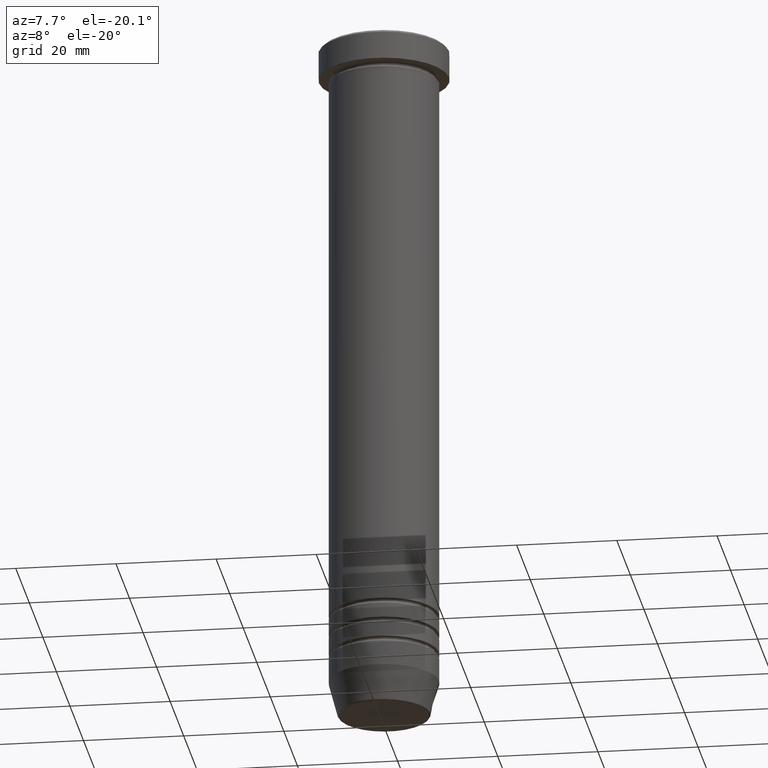
[diagram: clean part render]
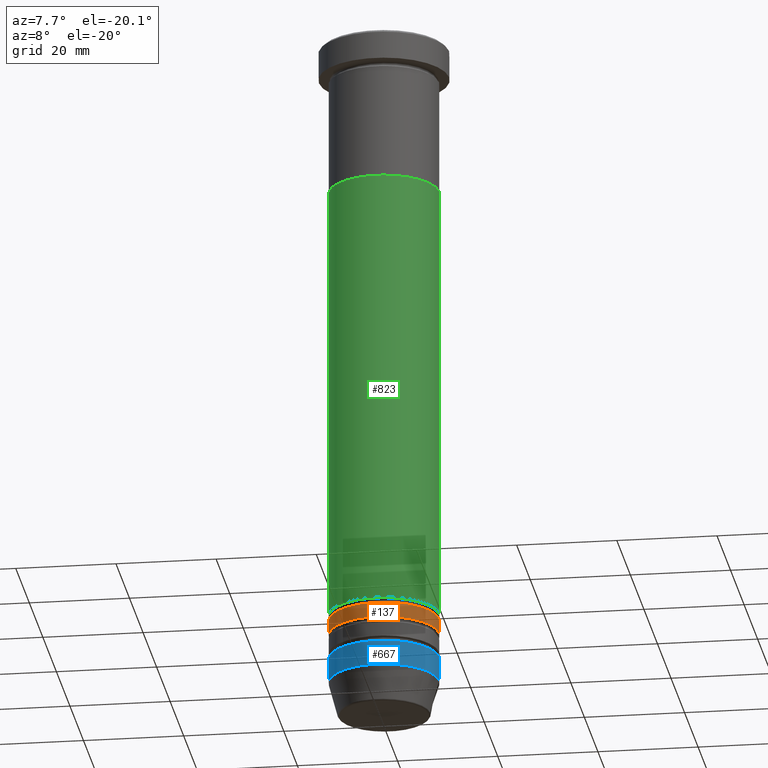
[diagram: same view with three faces highlighted in distinct colors, each labeled with its STEP entity id]
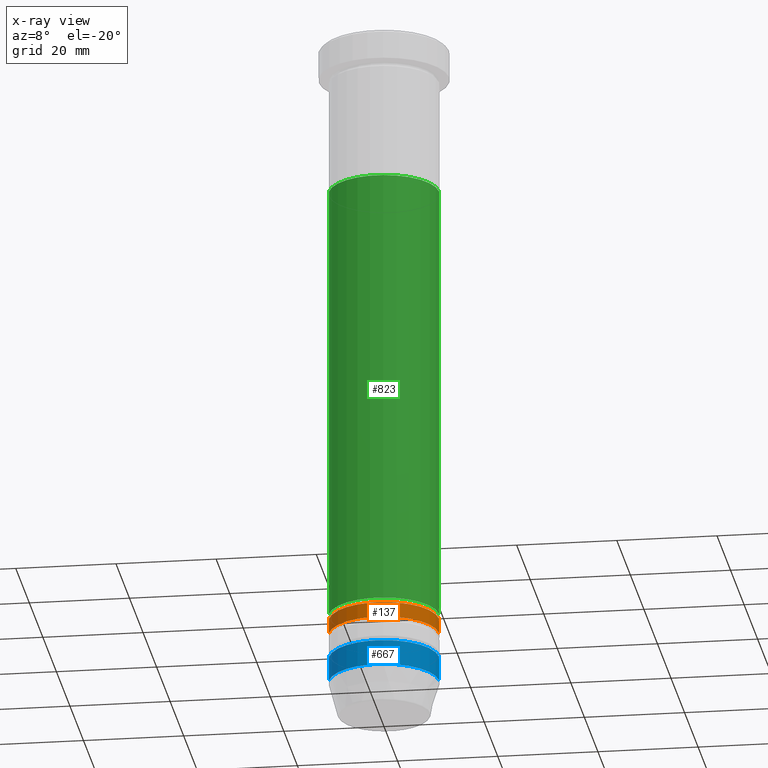
[diagram: x-ray of the same camera — body ghosted, the three highlighted faces saturated]
A machine part, auxiliary view with three faces highlighted in distinct colors.
The next image is the same camera in x-ray (body ghosted, the three faces saturated) — at least one of them is partly hidden behind the body in this view.
Their STEP definitions:

[orange] entity #137 — the highlighted cylindrical surface (partial cylindrical patch) has radius 11 mm, axis along (-0, -0, 1).
#3 = CARTESIAN_POINT ( 'NONE',  ( -10.99999999999999822, 1.347111479062088207E-15, -123.0000000000000000 ) ) ;
#25 = AXIS2_PLACEMENT_3D ( 'NONE', #379, #712, #158 ) ;
#36 = EDGE_CURVE ( 'NONE', #610, #369, #223, .T. ) ;
#61 = LINE ( 'NONE', #775, #469 ) ;
#137 = ADVANCED_FACE ( 'NONE', ( #724 ), #990, .T. ) ;
#158 = DIRECTION ( 'NONE',  ( 1.000000000000000000, 0.000000000000000000, 0.000000000000000000 ) ) ;
#174 = VERTEX_POINT ( 'NONE', #570 ) ;
#223 = CIRCLE ( 'NONE', #25, 11.00000000000000000 ) ;
#244 = DIRECTION ( 'NONE',  ( 1.000000000000000000, 0.000000000000000000, 0.000000000000000000 ) ) ;
#282 = ORIENTED_EDGE ( 'NONE', *, *, #614, .T. ) ;
#351 = LINE ( 'NONE', #687, #764 ) ;
#362 = ORIENTED_EDGE ( 'NONE', *, *, #845, .T. ) ;
#369 = VERTEX_POINT ( 'NONE', #766 ) ;
#379 = CARTESIAN_POINT ( 'NONE',  ( 0.000000000000000000, 0.000000000000000000, -120.0000000000000000 ) ) ;
#381 = DIRECTION ( 'NONE',  ( -0.000000000000000000, -0.000000000000000000, 1.000000000000000000 ) ) ;
#403 = DIRECTION ( 'NONE',  ( -0.000000000000000000, -0.000000000000000000, 1.000000000000000000 ) ) ;
#414 = CARTESIAN_POINT ( 'NONE',  ( -11.00000000000000000, 1.347111479062088405E-15, -120.0000000000000000 ) ) ;
#469 = VECTOR ( 'NONE', #381, 1000.000000000000000 ) ;
#550 = AXIS2_PLACEMENT_3D ( 'NONE', #811, #403, #1059 ) ;
#570 = CARTESIAN_POINT ( 'NONE',  ( 10.99999999999999822, 0.000000000000000000, -123.0000000000000000 ) ) ;
#610 = VERTEX_POINT ( 'NONE', #414 ) ;
#614 = EDGE_CURVE ( 'NONE', #1034, #174, #916, .T. ) ;
#660 = CARTESIAN_POINT ( 'NONE',  ( 0.000000000000000000, 0.000000000000000000, 0.000000000000000000 ) ) ;
#687 = CARTESIAN_POINT ( 'NONE',  ( 11.00000000000000000, 0.000000000000000000, 0.000000000000000000 ) ) ;
#712 = DIRECTION ( 'NONE',  ( -0.000000000000000000, -0.000000000000000000, 1.000000000000000000 ) ) ;
#724 = FACE_OUTER_BOUND ( 'NONE', #1057, .T. ) ;
#742 = DIRECTION ( 'NONE',  ( -0.000000000000000000, -0.000000000000000000, 1.000000000000000000 ) ) ;
#764 = VECTOR ( 'NONE', #936, 1000.000000000000000 ) ;
#766 = CARTESIAN_POINT ( 'NONE',  ( 11.00000000000000000, 0.000000000000000000, -120.0000000000000000 ) ) ;
#775 = CARTESIAN_POINT ( 'NONE',  ( -11.00000000000000000, 1.347111479062088405E-15, 0.000000000000000000 ) ) ;
#811 = CARTESIAN_POINT ( 'NONE',  ( 0.000000000000000000, 0.000000000000000000, -123.0000000000000000 ) ) ;
#815 = ORIENTED_EDGE ( 'NONE', *, *, #36, .F. ) ;
#845 = EDGE_CURVE ( 'NONE', #174, #369, #351, .T. ) ;
#900 = ORIENTED_EDGE ( 'NONE', *, *, #968, .F. ) ;
#916 = CIRCLE ( 'NONE', #550, 10.99999999999999822 ) ;
#936 = DIRECTION ( 'NONE',  ( -0.000000000000000000, -0.000000000000000000, 1.000000000000000000 ) ) ;
#968 = EDGE_CURVE ( 'NONE', #1034, #610, #61, .T. ) ;
#990 = CYLINDRICAL_SURFACE ( 'NONE', #1036, 11.00000000000000000 ) ;
#1034 = VERTEX_POINT ( 'NONE', #3 ) ;
#1036 = AXIS2_PLACEMENT_3D ( 'NONE', #660, #742, #244 ) ;
#1057 = EDGE_LOOP ( 'NONE', ( #900, #282, #362, #815 ) ) ;
#1059 = DIRECTION ( 'NONE',  ( 1.000000000000000000, 0.000000000000000000, 0.000000000000000000 ) ) ;

[blue] entity #667 — the highlighted cylindrical surface (partial cylindrical patch) has radius 11 mm, axis along (-0, -0, 1).
#5 = FACE_OUTER_BOUND ( 'NONE', #313, .T. ) ;
#68 = CARTESIAN_POINT ( 'NONE',  ( 11.00000000000000000, 0.000000000000000000, -128.0000000000000000 ) ) ;
#75 = DIRECTION ( 'NONE',  ( -0.000000000000000000, -0.000000000000000000, 1.000000000000000000 ) ) ;
#86 = VERTEX_POINT ( 'NONE', #289 ) ;
#89 = EDGE_CURVE ( 'NONE', #86, #522, #794, .T. ) ;
#143 = CARTESIAN_POINT ( 'NONE',  ( 11.00000000000000000, 0.000000000000000000, 0.000000000000000000 ) ) ;
#205 = CARTESIAN_POINT ( 'NONE',  ( -11.00000000000000000, 1.347111479062088405E-15, -132.9999999999999716 ) ) ;
#216 = ORIENTED_EDGE ( 'NONE', *, *, #534, .T. ) ;
#217 = VECTOR ( 'NONE', #370, 1000.000000000000000 ) ;
#273 = VECTOR ( 'NONE', #75, 1000.000000000000000 ) ;
#289 = CARTESIAN_POINT ( 'NONE',  ( 11.00000000000000000, 0.000000000000000000, -132.9999999999999716 ) ) ;
#296 = ORIENTED_EDGE ( 'NONE', *, *, #883, .F. ) ;
#313 = EDGE_LOOP ( 'NONE', ( #296, #216, #853, #743 ) ) ;
#314 = DIRECTION ( 'NONE',  ( 1.000000000000000000, 0.000000000000000000, 0.000000000000000000 ) ) ;
#354 = VERTEX_POINT ( 'NONE', #205 ) ;
#370 = DIRECTION ( 'NONE',  ( -0.000000000000000000, -0.000000000000000000, 1.000000000000000000 ) ) ;
#443 = AXIS2_PLACEMENT_3D ( 'NONE', #446, #777, #716 ) ;
#446 = CARTESIAN_POINT ( 'NONE',  ( 0.000000000000000000, 0.000000000000000000, -132.9999999999999716 ) ) ;
#473 = DIRECTION ( 'NONE',  ( 1.000000000000000000, 0.000000000000000000, 0.000000000000000000 ) ) ;
#522 = VERTEX_POINT ( 'NONE', #68 ) ;
#534 = EDGE_CURVE ( 'NONE', #354, #86, #755, .T. ) ;
#538 = LINE ( 'NONE', #866, #217 ) ;
#631 = CIRCLE ( 'NONE', #717, 11.00000000000000000 ) ;
#634 = CARTESIAN_POINT ( 'NONE',  ( -11.00000000000000000, 1.347111479062088405E-15, -128.0000000000000000 ) ) ;
#667 = ADVANCED_FACE ( 'NONE', ( #5 ), #1055, .T. ) ;
#695 = EDGE_CURVE ( 'NONE', #901, #522, #631, .T. ) ;
#716 = DIRECTION ( 'NONE',  ( 1.000000000000000000, 0.000000000000000000, 0.000000000000000000 ) ) ;
#717 = AXIS2_PLACEMENT_3D ( 'NONE', #981, #898, #473 ) ;
#727 = CARTESIAN_POINT ( 'NONE',  ( 0.000000000000000000, 0.000000000000000000, 0.000000000000000000 ) ) ;
#743 = ORIENTED_EDGE ( 'NONE', *, *, #695, .F. ) ;
#755 = CIRCLE ( 'NONE', #443, 11.00000000000000000 ) ;
#777 = DIRECTION ( 'NONE',  ( -0.000000000000000000, -0.000000000000000000, 1.000000000000000000 ) ) ;
#794 = LINE ( 'NONE', #143, #273 ) ;
#833 = AXIS2_PLACEMENT_3D ( 'NONE', #727, #885, #314 ) ;
#853 = ORIENTED_EDGE ( 'NONE', *, *, #89, .T. ) ;
#866 = CARTESIAN_POINT ( 'NONE',  ( -11.00000000000000000, 1.347111479062088405E-15, 0.000000000000000000 ) ) ;
#883 = EDGE_CURVE ( 'NONE', #354, #901, #538, .T. ) ;
#885 = DIRECTION ( 'NONE',  ( -0.000000000000000000, -0.000000000000000000, 1.000000000000000000 ) ) ;
#898 = DIRECTION ( 'NONE',  ( -0.000000000000000000, -0.000000000000000000, 1.000000000000000000 ) ) ;
#901 = VERTEX_POINT ( 'NONE', #634 ) ;
#981 = CARTESIAN_POINT ( 'NONE',  ( 0.000000000000000000, 0.000000000000000000, -128.0000000000000000 ) ) ;
#1055 = CYLINDRICAL_SURFACE ( 'NONE', #833, 11.00000000000000000 ) ;

[green] entity #823 — the highlighted cylindrical surface (partial cylindrical patch) has radius 11 mm, axis along (-0, -0, 1).
#10 = ORIENTED_EDGE ( 'NONE', *, *, #380, .F. ) ;
#20 = VERTEX_POINT ( 'NONE', #299 ) ;
#40 = AXIS2_PLACEMENT_3D ( 'NONE', #933, #195, #772 ) ;
#74 = CARTESIAN_POINT ( 'NONE',  ( 0.000000000000000000, 0.000000000000000000, -119.0000000000000000 ) ) ;
#93 = LINE ( 'NONE', #996, #1003 ) ;
#98 = EDGE_CURVE ( 'NONE', #20, #246, #863, .T. ) ;
#104 = CARTESIAN_POINT ( 'NONE',  ( 0.000000000000000000, 0.000000000000000000, 0.000000000000000000 ) ) ;
#194 = CYLINDRICAL_SURFACE ( 'NONE', #611, 10.99999999999999645 ) ;
#195 = DIRECTION ( 'NONE',  ( -0.000000000000000000, -0.000000000000000000, 1.000000000000000000 ) ) ;
#198 = CARTESIAN_POINT ( 'NONE',  ( -10.99999999999999289, 1.347111479062087813E-15, -119.0000000000000000 ) ) ;
#245 = ORIENTED_EDGE ( 'NONE', *, *, #486, .T. ) ;
#246 = VERTEX_POINT ( 'NONE', #485 ) ;
#248 = EDGE_CURVE ( 'NONE', #851, #564, #93, .T. ) ;
#255 = DIRECTION ( 'NONE',  ( -0.000000000000000000, -0.000000000000000000, 1.000000000000000000 ) ) ;
#299 = CARTESIAN_POINT ( 'NONE',  ( 10.99999999999999289, 0.000000000000000000, -119.0000000000000000 ) ) ;
#355 = CIRCLE ( 'NONE', #375, 10.99999999999999289 ) ;
#375 = AXIS2_PLACEMENT_3D ( 'NONE', #74, #1047, #625 ) ;
#380 = EDGE_CURVE ( 'NONE', #564, #246, #601, .T. ) ;
#388 = DIRECTION ( 'NONE',  ( -0.000000000000000000, -0.000000000000000000, 1.000000000000000000 ) ) ;
#434 = DIRECTION ( 'NONE',  ( 1.000000000000000000, 0.000000000000000000, 0.000000000000000000 ) ) ;
#485 = CARTESIAN_POINT ( 'NONE',  ( 11.00000000000000000, 0.000000000000000000, -30.00000000000000000 ) ) ;
#486 = EDGE_CURVE ( 'NONE', #851, #20, #355, .T. ) ;
#518 = DIRECTION ( 'NONE',  ( -0.000000000000000000, -0.000000000000000000, 1.000000000000000000 ) ) ;
#545 = CARTESIAN_POINT ( 'NONE',  ( -10.99999999999999822, 1.347111479062088405E-15, -30.00000000000000000 ) ) ;
#564 = VERTEX_POINT ( 'NONE', #545 ) ;
#601 = CIRCLE ( 'NONE', #40, 11.00000000000000000 ) ;
#605 = FACE_OUTER_BOUND ( 'NONE', #803, .T. ) ;
#611 = AXIS2_PLACEMENT_3D ( 'NONE', #104, #518, #434 ) ;
#625 = DIRECTION ( 'NONE',  ( 1.000000000000000000, 0.000000000000000000, 0.000000000000000000 ) ) ;
#652 = VECTOR ( 'NONE', #388, 1000.000000000000000 ) ;
#767 = ORIENTED_EDGE ( 'NONE', *, *, #98, .T. ) ;
#772 = DIRECTION ( 'NONE',  ( 1.000000000000000000, 0.000000000000000000, 0.000000000000000000 ) ) ;
#787 = CARTESIAN_POINT ( 'NONE',  ( 10.99999999999999645, 0.000000000000000000, 0.000000000000000000 ) ) ;
#803 = EDGE_LOOP ( 'NONE', ( #907, #245, #767, #10 ) ) ;
#823 = ADVANCED_FACE ( 'NONE', ( #605 ), #194, .T. ) ;
#851 = VERTEX_POINT ( 'NONE', #198 ) ;
#863 = LINE ( 'NONE', #787, #652 ) ;
#907 = ORIENTED_EDGE ( 'NONE', *, *, #248, .F. ) ;
#933 = CARTESIAN_POINT ( 'NONE',  ( 0.000000000000000000, 0.000000000000000000, -30.00000000000000000 ) ) ;
#996 = CARTESIAN_POINT ( 'NONE',  ( -10.99999999999999645, 1.347111479062088010E-15, 0.000000000000000000 ) ) ;
#1003 = VECTOR ( 'NONE', #255, 1000.000000000000000 ) ;
#1047 = DIRECTION ( 'NONE',  ( -0.000000000000000000, -0.000000000000000000, 1.000000000000000000 ) ) ;